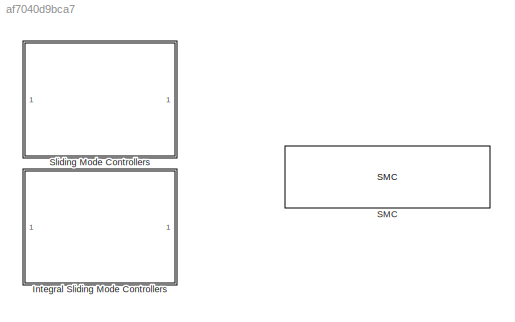
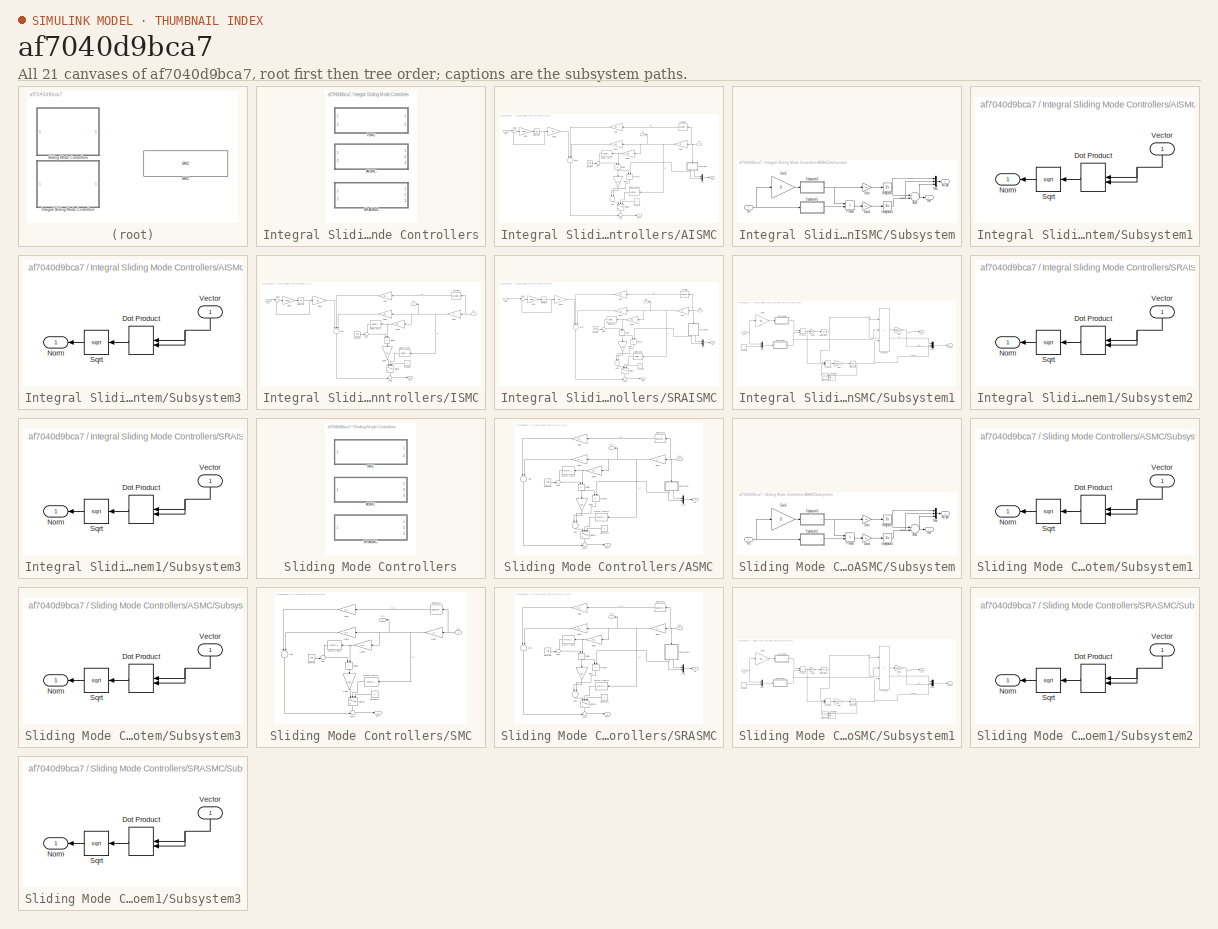
[diagram: thumbnail index - all 21 canvases of the model, root first then tree order]
MODEL slx_af7040d9bca7
KIND library
CONFIG AbsTol = auto
CONFIG EnableMultiTasking = off
CONFIG FixedStep = auto
CONFIG MaxStep = auto
CONFIG MinStep = auto
CONFIG RelTol = 1e-3
CONFIG SampleTimeConstraint = Unconstrained
CONFIG Solver = VariableStepAuto
CONFIG SolverName = VariableStepAuto
CONFIG StartTime = 0.0
CONFIG StopTime = 10.0
BLOCK [SubSystem] Integral Sliding Mode Controllers
  Ports = []
  RequestExecContextInheritance = off
  Variant = off
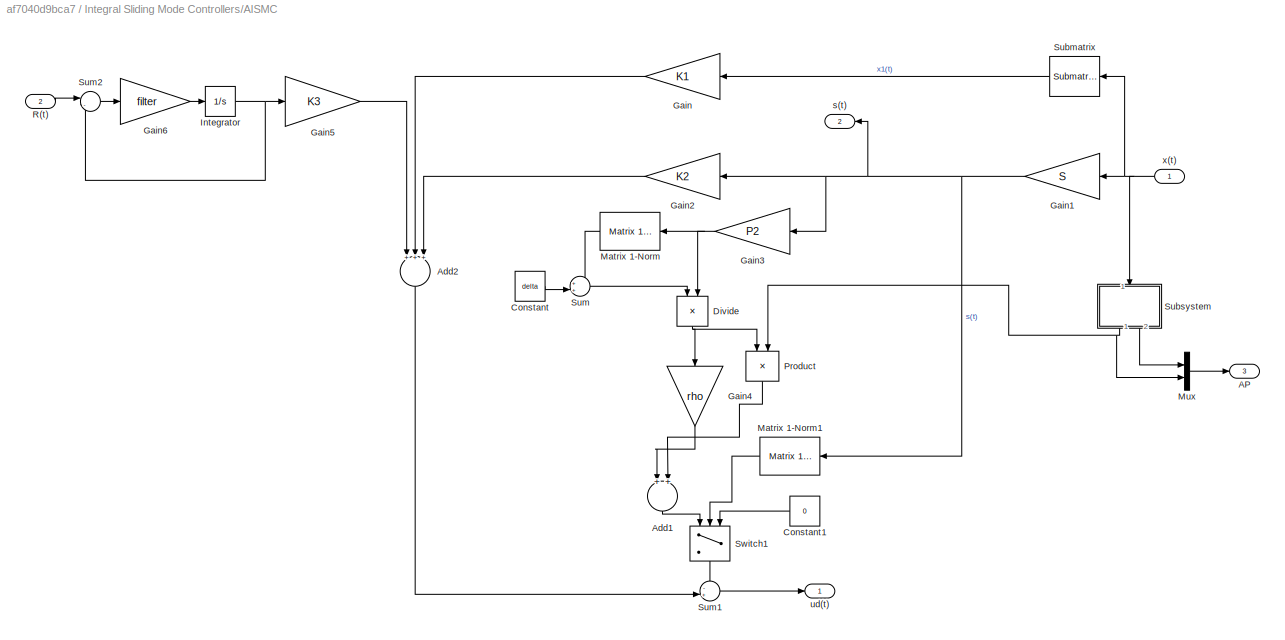
BLOCK [SubSystem] Integral Sliding Mode Controllers/AISMC
  Ports = [2, 3]
  RequestExecContextInheritance = off
  Variant = off
BLOCK [Outport] Integral Sliding Mode Controllers/AISMC/AP
  IconDisplay = Port number
  Port = 3
BLOCK [Sum] Integral Sliding Mode Controllers/AISMC/Add1
  InputSameDT = off
  OutDataTypeStr = Inherit: Inherit via internal rule
  Ports = [2, 1]
  SaturateOnIntegerOverflow = off
BLOCK [Sum] Integral Sliding Mode Controllers/AISMC/Add2
  InputSameDT = off
  Inputs = +++
  OutDataTypeStr = Inherit: Inherit via internal rule
  Ports = [3, 1]
  SaturateOnIntegerOverflow = off
BLOCK [Constant] Integral Sliding Mode Controllers/AISMC/Constant
  Value = delta
BLOCK [Constant] Integral Sliding Mode Controllers/AISMC/Constant1
  Value = 0
BLOCK [Product] Integral Sliding Mode Controllers/AISMC/Divide
  InputSameDT = off
  Inputs = /*
  OutDataTypeStr = Inherit: Inherit via internal rule
  Ports = [2, 1]
  RndMeth = Floor
  SaturateOnIntegerOverflow = off
BLOCK [Gain] Integral Sliding Mode Controllers/AISMC/Gain
  Gain = K1
  Multiplication = Matrix(K*u) (u vector)
  OutDataTypeStr = Inherit: Inherit via internal rule
  ParamDataTypeStr = Inherit: Inherit via internal rule
  SaturateOnIntegerOverflow = off
BLOCK [Gain] Integral Sliding Mode Controllers/AISMC/Gain1
  Gain = S
  Multiplication = Matrix(K*u) (u vector)
  OutDataTypeStr = Inherit: Inherit via internal rule
  ParamDataTypeStr = Inherit: Inherit via internal rule
  SaturateOnIntegerOverflow = off
BLOCK [Gain] Integral Sliding Mode Controllers/AISMC/Gain2
  Gain = K2
  Multiplication = Matrix(K*u) (u vector)
  OutDataTypeStr = Inherit: Inherit via internal rule
  ParamDataTypeStr = Inherit: Inherit via internal rule
  SaturateOnIntegerOverflow = off
BLOCK [Gain] Integral Sliding Mode Controllers/AISMC/Gain3
  Gain = P2
  Multiplication = Matrix(K*u) (u vector)
  OutDataTypeStr = Inherit: Inherit via internal rule
  ParamDataTypeStr = Inherit: Inherit via internal rule
  SaturateOnIntegerOverflow = off
BLOCK [Gain] Integral Sliding Mode Controllers/AISMC/Gain4
  Gain = rho
  OutDataTypeStr = Inherit: Inherit via internal rule
  ParamDataTypeStr = Inherit: Inherit via internal rule
  SaturateOnIntegerOverflow = off
BLOCK [Gain] Integral Sliding Mode Controllers/AISMC/Gain5
  Gain = K3
  Multiplication = Matrix(K*u) (u vector)
  OutDataTypeStr = Inherit: Inherit via internal rule
  ParamDataTypeStr = Inherit: Inherit via internal rule
  SaturateOnIntegerOverflow = off
BLOCK [Gain] Integral Sliding Mode Controllers/AISMC/Gain6
  Gain = filter
  Multiplication = Matrix(K*u) (u vector)
  OutDataTypeStr = Inherit: Inherit via internal rule
  ParamDataTypeStr = Inherit: Inherit via internal rule
  SaturateOnIntegerOverflow = off
BLOCK [Integrator] Integral Sliding Mode Controllers/AISMC/Integrator
  Ports = [1, 1]
BLOCK [Reference] Integral Sliding Mode Controllers/AISMC/Matrix 1-Norm  REF=dspmtrx3/Matrix 
1-Norm
  Ports = [1, 1]
  SourceBlock = dspmtrx3/Matrix \n1-Norm
  SourceProductBaseCode = DS
  SourceProductName = DSP System Toolbox
  SourceType = Matrix 1-Norm
BLOCK [Reference] Integral Sliding Mode Controllers/AISMC/Matrix 1-Norm1  REF=dspmtrx3/Matrix 
1-Norm
  Ports = [1, 1]
  SourceBlock = dspmtrx3/Matrix \n1-Norm
  SourceProductBaseCode = DS
  SourceProductName = DSP System Toolbox
  SourceType = Matrix 1-Norm
BLOCK [Mux] Integral Sliding Mode Controllers/AISMC/Mux
  DisplayOption = bar
  Inputs = 2
  Ports = [2, 1]
BLOCK [Product] Integral Sliding Mode Controllers/AISMC/Product
  InputSameDT = off
  OutDataTypeStr = Inherit: Inherit via internal rule
  Ports = [2, 1]
  RndMeth = Floor
  SaturateOnIntegerOverflow = off
BLOCK [Inport] Integral Sliding Mode Controllers/AISMC/R(t)
  IconDisplay = Port number
  Port = 2
BLOCK [Reference] Integral Sliding Mode Controllers/AISMC/Submatrix  REF=dspmtrx3/Submatrix
  Ports = [1, 1]
  SourceBlock = dspmtrx3/Submatrix
  SourceProductBaseCode = DS
  SourceProductName = DSP System Toolbox
  SourceType = Submatrix
BLOCK [SubSystem] Integral Sliding Mode Controllers/AISMC/Subsystem
  Ports = [1, 2]
  RequestExecContextInheritance = off
  Variant = off
BLOCK [Sum] Integral Sliding Mode Controllers/AISMC/Subsystem/Add
  InputSameDT = off
  OutDataTypeStr = Inherit: Inherit via internal rule
  Ports = [2, 1]
  SaturateOnIntegerOverflow = off
BLOCK [Gain] Integral Sliding Mode Controllers/AISMC/Subsystem/Gain
  Gain = pc
  OutDataTypeStr = Inherit: Inherit via internal rule
  ParamDataTypeStr = Inherit: Inherit via internal rule
  SaturateOnIntegerOverflow = off
BLOCK [Gain] Integral Sliding Mode Controllers/AISMC/Subsystem/Gain1
  Gain = pk
  OutDataTypeStr = Inherit: Inherit via internal rule
  ParamDataTypeStr = Inherit: Inherit via internal rule
  SaturateOnIntegerOverflow = off
BLOCK [Gain] Integral Sliding Mode Controllers/AISMC/Subsystem/Gain2
  Gain = S
  Multiplication = Matrix(K*u) (u vector)
  OutDataTypeStr = Inherit: Inherit via internal rule
  ParamDataTypeStr = Inherit: Inherit via internal rule
  SaturateOnIntegerOverflow = off
BLOCK [Integrator] Integral Sliding Mode Controllers/AISMC/Subsystem/Integrator
  InitialCondition = c0
  Ports = [1, 1]
BLOCK [Integrator] Integral Sliding Mode Controllers/AISMC/Subsystem/Integrator1
  InitialCondition = k0
  Ports = [1, 1]
BLOCK [Mux] Integral Sliding Mode Controllers/AISMC/Subsystem/Mux
  DisplayOption = bar
  Inputs = 3
  Ports = [3, 1]
BLOCK [Product] Integral Sliding Mode Controllers/AISMC/Subsystem/Product
  InputSameDT = off
  OutDataTypeStr = Inherit: Inherit via internal rule
  Ports = [2, 1]
  RndMeth = Floor
  SaturateOnIntegerOverflow = off
BLOCK [SubSystem] Integral Sliding Mode Controllers/AISMC/Subsystem/Subsystem1
  Ports = [1, 1]
  RequestExecContextInheritance = off
  Variant = off
BLOCK [DotProduct] Integral Sliding Mode Controllers/AISMC/Subsystem/Subsystem1/Dot Product
  OutDataTypeStr = Inherit: Inherit via internal rule
BLOCK [Outport] Integral Sliding Mode Controllers/AISMC/Subsystem/Subsystem1/Norm
  IconDisplay = Port number
BLOCK [Sqrt] Integral Sliding Mode Controllers/AISMC/Subsystem/Subsystem1/Sqrt
BLOCK [Inport] Integral Sliding Mode Controllers/AISMC/Subsystem/Subsystem1/Vector
  IconDisplay = Port number
BLOCK [SubSystem] Integral Sliding Mode Controllers/AISMC/Subsystem/Subsystem3
  Ports = [1, 1]
  RequestExecContextInheritance = off
  Variant = off
BLOCK [DotProduct] Integral Sliding Mode Controllers/AISMC/Subsystem/Subsystem3/Dot Product
  OutDataTypeStr = Inherit: Inherit via internal rule
BLOCK [Outport] Integral Sliding Mode Controllers/AISMC/Subsystem/Subsystem3/Norm
  IconDisplay = Port number
BLOCK [Sqrt] Integral Sliding Mode Controllers/AISMC/Subsystem/Subsystem3/Sqrt
BLOCK [Inport] Integral Sliding Mode Controllers/AISMC/Subsystem/Subsystem3/Vector
  IconDisplay = Port number
BLOCK [Outport] Integral Sliding Mode Controllers/AISMC/Subsystem/est-par
  IconDisplay = Port number
  Port = 2
BLOCK [Outport] Integral Sliding Mode Controllers/AISMC/Subsystem/rho
  IconDisplay = Port number
BLOCK [Inport] Integral Sliding Mode Controllers/AISMC/Subsystem/x(t)
  IconDisplay = Port number
BLOCK [Sum] Integral Sliding Mode Controllers/AISMC/Sum
  IconShape = round
  InputSameDT = off
  Inputs = ++|
  OutDataTypeStr = Inherit: Inherit via internal rule
  Ports = [2, 1]
  SaturateOnIntegerOverflow = off
BLOCK [Sum] Integral Sliding Mode Controllers/AISMC/Sum1
  IconShape = round
  InputSameDT = off
  Inputs = -+|
  OutDataTypeStr = Inherit: Inherit via internal rule
  Ports = [2, 1]
  SaturateOnIntegerOverflow = off
BLOCK [Sum] Integral Sliding Mode Controllers/AISMC/Sum2
  IconShape = round
  InputSameDT = off
  Inputs = |-+
  OutDataTypeStr = Inherit: Inherit via internal rule
  Ports = [2, 1]
  SaturateOnIntegerOverflow = off
BLOCK [Switch] Integral Sliding Mode Controllers/AISMC/Switch1
  Criteria = u2 > Threshold
  InputSameDT = off
  SaturateOnIntegerOverflow = off
  Threshold = eps
  ZeroCross = off
BLOCK [Outport] Integral Sliding Mode Controllers/AISMC/s(t)
  IconDisplay = Port number
  Port = 2
BLOCK [Outport] Integral Sliding Mode Controllers/AISMC/ud(t)
  IconDisplay = Port number
BLOCK [Inport] Integral Sliding Mode Controllers/AISMC/x(t)
  IconDisplay = Port number
BLOCK [SubSystem] Integral Sliding Mode Controllers/ISMC
  Ports = [2, 2]
  RequestExecContextInheritance = off
  Variant = off
BLOCK [Sum] Integral Sliding Mode Controllers/ISMC/Add
  InputSameDT = off
  Inputs = +++
  OutDataTypeStr = Inherit: Inherit via internal rule
  Ports = [3, 1]
  SaturateOnIntegerOverflow = off
BLOCK [Constant] Integral Sliding Mode Controllers/ISMC/Constant
  Value = delta
BLOCK [Constant] Integral Sliding Mode Controllers/ISMC/Constant1
  Value = 0
BLOCK [Product] Integral Sliding Mode Controllers/ISMC/Divide
  InputSameDT = off
  Inputs = /*
  OutDataTypeStr = Inherit: Inherit via internal rule
  Ports = [2, 1]
  RndMeth = Floor
  SaturateOnIntegerOverflow = off
BLOCK [Gain] Integral Sliding Mode Controllers/ISMC/Gain
  Gain = K1
  Multiplication = Matrix(K*u) (u vector)
  OutDataTypeStr = Inherit: Inherit via internal rule
  ParamDataTypeStr = Inherit: Inherit via internal rule
  SaturateOnIntegerOverflow = off
BLOCK [Gain] Integral Sliding Mode Controllers/ISMC/Gain1
  Gain = S
  Multiplication = Matrix(K*u) (u vector)
  OutDataTypeStr = Inherit: Inherit via internal rule
  ParamDataTypeStr = Inherit: Inherit via internal rule
  SaturateOnIntegerOverflow = off
BLOCK [Gain] Integral Sliding Mode Controllers/ISMC/Gain2
  Gain = K2
  Multiplication = Matrix(K*u) (u vector)
  OutDataTypeStr = Inherit: Inherit via internal rule
  ParamDataTypeStr = Inherit: Inherit via internal rule
  SaturateOnIntegerOverflow = off
BLOCK [Gain] Integral Sliding Mode Controllers/ISMC/Gain3
  Gain = P2
  Multiplication = Matrix(K*u) (u vector)
  OutDataTypeStr = Inherit: Inherit via internal rule
  ParamDataTypeStr = Inherit: Inherit via internal rule
  SaturateOnIntegerOverflow = off
BLOCK [Gain] Integral Sliding Mode Controllers/ISMC/Gain4
  Gain = rho
  OutDataTypeStr = Inherit: Inherit via internal rule
  ParamDataTypeStr = Inherit: Inherit via internal rule
  SaturateOnIntegerOverflow = off
BLOCK [Gain] Integral Sliding Mode Controllers/ISMC/Gain5
  Gain = K3
  Multiplication = Matrix(K*u) (u vector)
  OutDataTypeStr = Inherit: Inherit via internal rule
  ParamDataTypeStr = Inherit: Inherit via internal rule
  SaturateOnIntegerOverflow = off
BLOCK [Gain] Integral Sliding Mode Controllers/ISMC/Gain6
  Gain = filter
  Multiplication = Matrix(K*u) (u vector)
  OutDataTypeStr = Inherit: Inherit via internal rule
  ParamDataTypeStr = Inherit: Inherit via internal rule
  SaturateOnIntegerOverflow = off
BLOCK [Integrator] Integral Sliding Mode Controllers/ISMC/Integrator
  Ports = [1, 1]
BLOCK [Reference] Integral Sliding Mode Controllers/ISMC/Matrix 1-Norm  REF=dspmtrx3/Matrix 
1-Norm
  Ports = [1, 1]
  SourceBlock = dspmtrx3/Matrix \n1-Norm
  SourceProductBaseCode = DS
  SourceProductName = DSP System Toolbox
  SourceType = Matrix 1-Norm
BLOCK [Reference] Integral Sliding Mode Controllers/ISMC/Matrix 1-Norm1  REF=dspmtrx3/Matrix 
1-Norm
  Ports = [1, 1]
  SourceBlock = dspmtrx3/Matrix \n1-Norm
  SourceProductBaseCode = DS
  SourceProductName = DSP System Toolbox
  SourceType = Matrix 1-Norm
BLOCK [Inport] Integral Sliding Mode Controllers/ISMC/R(t)
  IconDisplay = Port number
  Port = 2
BLOCK [Reference] Integral Sliding Mode Controllers/ISMC/Submatrix  REF=dspmtrx3/Submatrix
  Ports = [1, 1]
  SourceBlock = dspmtrx3/Submatrix
  SourceProductBaseCode = DS
  SourceProductName = DSP System Toolbox
  SourceType = Submatrix
BLOCK [Sum] Integral Sliding Mode Controllers/ISMC/Sum
  IconShape = round
  InputSameDT = off
  Inputs = ++|
  OutDataTypeStr = Inherit: Inherit via internal rule
  Ports = [2, 1]
  SaturateOnIntegerOverflow = off
BLOCK [Sum] Integral Sliding Mode Controllers/ISMC/Sum1
  IconShape = round
  InputSameDT = off
  Inputs = -+|
  OutDataTypeStr = Inherit: Inherit via internal rule
  Ports = [2, 1]
  SaturateOnIntegerOverflow = off
BLOCK [Sum] Integral Sliding Mode Controllers/ISMC/Sum2
  IconShape = round
  InputSameDT = off
  Inputs = |-+
  OutDataTypeStr = Inherit: Inherit via internal rule
  Ports = [2, 1]
  SaturateOnIntegerOverflow = off
BLOCK [Switch] Integral Sliding Mode Controllers/ISMC/Switch1
  Criteria = u2 > Threshold
  InputSameDT = off
  SaturateOnIntegerOverflow = off
  Threshold = eps
  ZeroCross = off
BLOCK [Outport] Integral Sliding Mode Controllers/ISMC/s(t)
  IconDisplay = Port number
  Port = 2
BLOCK [Outport] Integral Sliding Mode Controllers/ISMC/ud(t)
  IconDisplay = Port number
BLOCK [Inport] Integral Sliding Mode Controllers/ISMC/x(t)
  IconDisplay = Port number
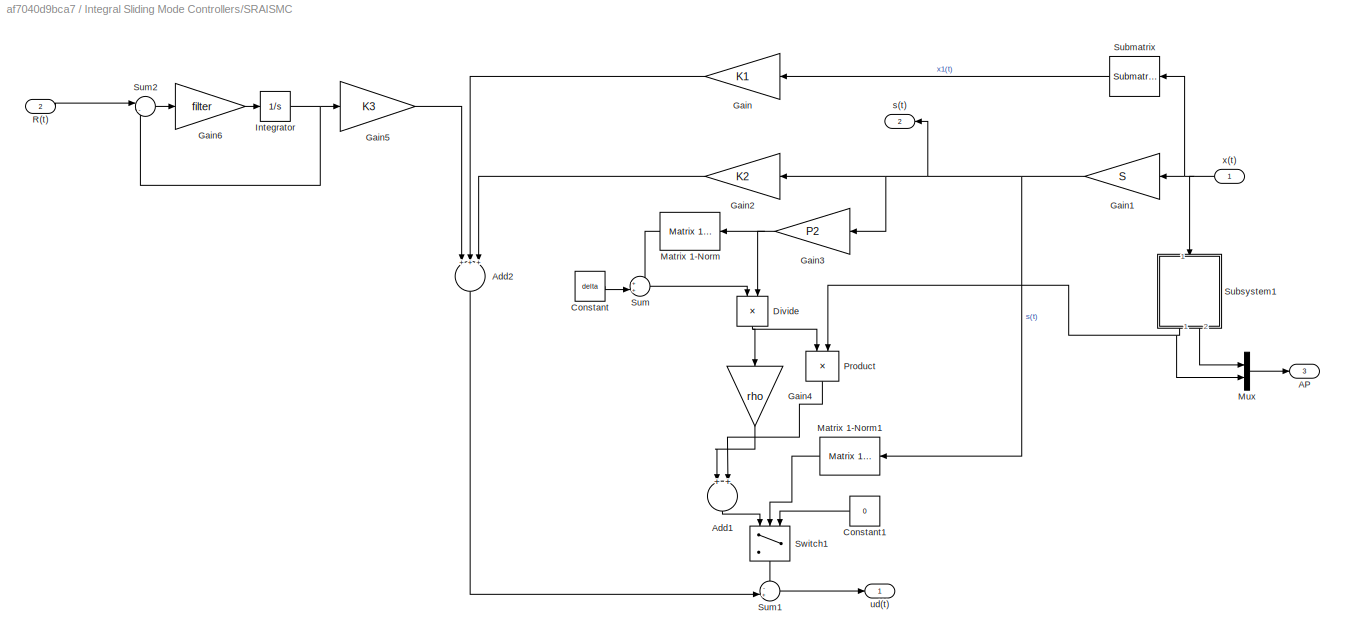
BLOCK [SubSystem] Integral Sliding Mode Controllers/SRAISMC
  Ports = [2, 3]
  RequestExecContextInheritance = off
  Variant = off
BLOCK [Outport] Integral Sliding Mode Controllers/SRAISMC/AP
  IconDisplay = Port number
  Port = 3
BLOCK [Sum] Integral Sliding Mode Controllers/SRAISMC/Add1
  InputSameDT = off
  OutDataTypeStr = Inherit: Inherit via internal rule
  Ports = [2, 1]
  SaturateOnIntegerOverflow = off
BLOCK [Sum] Integral Sliding Mode Controllers/SRAISMC/Add2
  InputSameDT = off
  Inputs = +++
  OutDataTypeStr = Inherit: Inherit via internal rule
  Ports = [3, 1]
  SaturateOnIntegerOverflow = off
BLOCK [Constant] Integral Sliding Mode Controllers/SRAISMC/Constant
  Value = delta
BLOCK [Constant] Integral Sliding Mode Controllers/SRAISMC/Constant1
  Value = 0
BLOCK [Product] Integral Sliding Mode Controllers/SRAISMC/Divide
  InputSameDT = off
  Inputs = /*
  OutDataTypeStr = Inherit: Inherit via internal rule
  Ports = [2, 1]
  RndMeth = Floor
  SaturateOnIntegerOverflow = off
BLOCK [Gain] Integral Sliding Mode Controllers/SRAISMC/Gain
  Gain = K1
  Multiplication = Matrix(K*u) (u vector)
  OutDataTypeStr = Inherit: Inherit via internal rule
  ParamDataTypeStr = Inherit: Inherit via internal rule
  SaturateOnIntegerOverflow = off
BLOCK [Gain] Integral Sliding Mode Controllers/SRAISMC/Gain1
  Gain = S
  Multiplication = Matrix(K*u) (u vector)
  OutDataTypeStr = Inherit: Inherit via internal rule
  ParamDataTypeStr = Inherit: Inherit via internal rule
  SaturateOnIntegerOverflow = off
BLOCK [Gain] Integral Sliding Mode Controllers/SRAISMC/Gain2
  Gain = K2
  Multiplication = Matrix(K*u) (u vector)
  OutDataTypeStr = Inherit: Inherit via internal rule
  ParamDataTypeStr = Inherit: Inherit via internal rule
  SaturateOnIntegerOverflow = off
BLOCK [Gain] Integral Sliding Mode Controllers/SRAISMC/Gain3
  Gain = P2
  Multiplication = Matrix(K*u) (u vector)
  OutDataTypeStr = Inherit: Inherit via internal rule
  ParamDataTypeStr = Inherit: Inherit via internal rule
  SaturateOnIntegerOverflow = off
BLOCK [Gain] Integral Sliding Mode Controllers/SRAISMC/Gain4
  Gain = rho
  OutDataTypeStr = Inherit: Inherit via internal rule
  ParamDataTypeStr = Inherit: Inherit via internal rule
  SaturateOnIntegerOverflow = off
BLOCK [Gain] Integral Sliding Mode Controllers/SRAISMC/Gain5
  Gain = K3
  Multiplication = Matrix(K*u) (u vector)
  OutDataTypeStr = Inherit: Inherit via internal rule
  ParamDataTypeStr = Inherit: Inherit via internal rule
  SaturateOnIntegerOverflow = off
BLOCK [Gain] Integral Sliding Mode Controllers/SRAISMC/Gain6
  Gain = filter
  Multiplication = Matrix(K*u) (u vector)
  OutDataTypeStr = Inherit: Inherit via internal rule
  ParamDataTypeStr = Inherit: Inherit via internal rule
  SaturateOnIntegerOverflow = off
BLOCK [Integrator] Integral Sliding Mode Controllers/SRAISMC/Integrator
  Ports = [1, 1]
BLOCK [Reference] Integral Sliding Mode Controllers/SRAISMC/Matrix 1-Norm  REF=dspmtrx3/Matrix 
1-Norm
  Ports = [1, 1]
  SourceBlock = dspmtrx3/Matrix \n1-Norm
  SourceProductBaseCode = DS
  SourceProductName = DSP System Toolbox
  SourceType = Matrix 1-Norm
BLOCK [Reference] Integral Sliding Mode Controllers/SRAISMC/Matrix 1-Norm1  REF=dspmtrx3/Matrix 
1-Norm
  Ports = [1, 1]
  SourceBlock = dspmtrx3/Matrix \n1-Norm
  SourceProductBaseCode = DS
  SourceProductName = DSP System Toolbox
  SourceType = Matrix 1-Norm
BLOCK [Mux] Integral Sliding Mode Controllers/SRAISMC/Mux
  DisplayOption = bar
  Inputs = 2
  Ports = [2, 1]
BLOCK [Product] Integral Sliding Mode Controllers/SRAISMC/Product
  InputSameDT = off
  OutDataTypeStr = Inherit: Inherit via internal rule
  Ports = [2, 1]
  RndMeth = Floor
  SaturateOnIntegerOverflow = off
BLOCK [Inport] Integral Sliding Mode Controllers/SRAISMC/R(t)
  IconDisplay = Port number
  Port = 2
BLOCK [Reference] Integral Sliding Mode Controllers/SRAISMC/Submatrix  REF=dspmtrx3/Submatrix
  Ports = [1, 1]
  SourceBlock = dspmtrx3/Submatrix
  SourceProductBaseCode = DS
  SourceProductName = DSP System Toolbox
  SourceType = Submatrix
BLOCK [SubSystem] Integral Sliding Mode Controllers/SRAISMC/Subsystem1
  Ports = [1, 2]
  RequestExecContextInheritance = off
  Variant = off
BLOCK [Constant] Integral Sliding Mode Controllers/SRAISMC/Subsystem1/Constant
BLOCK [Constant] Integral Sliding Mode Controllers/SRAISMC/Subsystem1/Constant3
  Value = 5
BLOCK [Gain] Integral Sliding Mode Controllers/SRAISMC/Subsystem1/Gain
  Gain = beta
  OutDataTypeStr = Inherit: Inherit via internal rule
  ParamDataTypeStr = Inherit: Inherit via internal rule
  SaturateOnIntegerOverflow = off
BLOCK [Gain] Integral Sliding Mode Controllers/SRAISMC/Subsystem1/Gain1
  Gain = pk
  OutDataTypeStr = Inherit: Inherit via internal rule
  ParamDataTypeStr = Inherit: Inherit via internal rule
  SaturateOnIntegerOverflow = off
BLOCK [Gain] Integral Sliding Mode Controllers/SRAISMC/Subsystem1/Gain2
  Gain = Slat
  Multiplication = Matrix(K*u) (u vector)
  OutDataTypeStr = Inherit: Inherit via internal rule
  ParamDataTypeStr = Inherit: Inherit via internal rule
  SaturateOnIntegerOverflow = off
BLOCK [Gain] Integral Sliding Mode Controllers/SRAISMC/Subsystem1/Gain3
  Gain = beta
  OutDataTypeStr = Inherit: Inherit via internal rule
  ParamDataTypeStr = Inherit: Inherit via internal rule
  SaturateOnIntegerOverflow = off
BLOCK [Integrator] Integral Sliding Mode Controllers/SRAISMC/Subsystem1/Integrator
  InitialCondition = gamma0
  Ports = [1, 1]
BLOCK [Integrator] Integral Sliding Mode Controllers/SRAISMC/Subsystem1/Integrator1
  InitialCondition = k02
  Ports = [1, 1]
BLOCK [Math] Integral Sliding Mode Controllers/SRAISMC/Subsystem1/Math Function
  Operator = pow
  Ports = [2, 1]
BLOCK [Mux] Integral Sliding Mode Controllers/SRAISMC/Subsystem1/Mux
  DisplayOption = bar
  Inputs = 2
  Ports = [2, 1]
BLOCK [Mux] Integral Sliding Mode Controllers/SRAISMC/Subsystem1/Mux1
  DisplayOption = bar
  Inputs = 3
  Ports = [3, 1]
BLOCK [Product] Integral Sliding Mode Controllers/SRAISMC/Subsystem1/Product
  InputSameDT = off
  OutDataTypeStr = Inherit: Inherit via internal rule
  Ports = [2, 1]
  RndMeth = Floor
  SaturateOnIntegerOverflow = off
BLOCK [Product] Integral Sliding Mode Controllers/SRAISMC/Subsystem1/Product1
  InputSameDT = off
  Inputs = 3
  OutDataTypeStr = Inherit: Inherit via internal rule
  Ports = [3, 1]
  RndMeth = Floor
  SaturateOnIntegerOverflow = off
BLOCK [Product] Integral Sliding Mode Controllers/SRAISMC/Subsystem1/Product2
  InputSameDT = off
  Inputs = 3
  OutDataTypeStr = Inherit: Inherit via internal rule
  Ports = [3, 1]
  RndMeth = Floor
  SaturateOnIntegerOverflow = off
BLOCK [SubSystem] Integral Sliding Mode Controllers/SRAISMC/Subsystem1/Subsystem2
  Ports = [1, 1]
  RequestExecContextInheritance = off
  Variant = off
BLOCK [DotProduct] Integral Sliding Mode Controllers/SRAISMC/Subsystem1/Subsystem2/Dot Product
  OutDataTypeStr = Inherit: Inherit via internal rule
BLOCK [Outport] Integral Sliding Mode Controllers/SRAISMC/Subsystem1/Subsystem2/Norm
  IconDisplay = Port number
BLOCK [Sqrt] Integral Sliding Mode Controllers/SRAISMC/Subsystem1/Subsystem2/Sqrt
BLOCK [Inport] Integral Sliding Mode Controllers/SRAISMC/Subsystem1/Subsystem2/Vector
  IconDisplay = Port number
BLOCK [SubSystem] Integral Sliding Mode Controllers/SRAISMC/Subsystem1/Subsystem3
  Ports = [1, 1]
  RequestExecContextInheritance = off
  Variant = off
BLOCK [DotProduct] Integral Sliding Mode Controllers/SRAISMC/Subsystem1/Subsystem3/Dot Product
  OutDataTypeStr = Inherit: Inherit via internal rule
BLOCK [Outport] Integral Sliding Mode Controllers/SRAISMC/Subsystem1/Subsystem3/Norm
  IconDisplay = Port number
BLOCK [Sqrt] Integral Sliding Mode Controllers/SRAISMC/Subsystem1/Subsystem3/Sqrt
BLOCK [Inport] Integral Sliding Mode Controllers/SRAISMC/Subsystem1/Subsystem3/Vector
  IconDisplay = Port number
BLOCK [Outport] Integral Sliding Mode Controllers/SRAISMC/Subsystem1/est-par
  IconDisplay = Port number
  Port = 2
BLOCK [Outport] Integral Sliding Mode Controllers/SRAISMC/Subsystem1/us(t)
  IconDisplay = Port number
BLOCK [Inport] Integral Sliding Mode Controllers/SRAISMC/Subsystem1/x(t)
  IconDisplay = Port number
BLOCK [Sum] Integral Sliding Mode Controllers/SRAISMC/Sum
  IconShape = round
  InputSameDT = off
  Inputs = ++|
  OutDataTypeStr = Inherit: Inherit via internal rule
  Ports = [2, 1]
  SaturateOnIntegerOverflow = off
BLOCK [Sum] Integral Sliding Mode Controllers/SRAISMC/Sum1
  IconShape = round
  InputSameDT = off
  Inputs = -+|
  OutDataTypeStr = Inherit: Inherit via internal rule
  Ports = [2, 1]
  SaturateOnIntegerOverflow = off
BLOCK [Sum] Integral Sliding Mode Controllers/SRAISMC/Sum2
  IconShape = round
  InputSameDT = off
  Inputs = |-+
  OutDataTypeStr = Inherit: Inherit via internal rule
  Ports = [2, 1]
  SaturateOnIntegerOverflow = off
BLOCK [Switch] Integral Sliding Mode Controllers/SRAISMC/Switch1
  Criteria = u2 > Threshold
  InputSameDT = off
  SaturateOnIntegerOverflow = off
  Threshold = eps
  ZeroCross = off
BLOCK [Outport] Integral Sliding Mode Controllers/SRAISMC/s(t)
  IconDisplay = Port number
  Port = 2
BLOCK [Outport] Integral Sliding Mode Controllers/SRAISMC/ud(t)
  IconDisplay = Port number
BLOCK [Inport] Integral Sliding Mode Controllers/SRAISMC/x(t)
  IconDisplay = Port number
BLOCK [Reference] SMC  REF=SMC2/SMC
  Ports = [2, 3]
  SourceBlock = SMC2/SMC
BLOCK [SubSystem] Sliding Mode Controllers
  Ports = []
  RequestExecContextInheritance = off
  Variant = off
BLOCK [SubSystem] Sliding Mode Controllers/ASMC
  Ports = [1, 3]
  RequestExecContextInheritance = off
  Variant = off
BLOCK [Outport] Sliding Mode Controllers/ASMC/AP
  IconDisplay = Port number
  Port = 3
BLOCK [Sum] Sliding Mode Controllers/ASMC/Add
  InputSameDT = off
  OutDataTypeStr = Inherit: Inherit via internal rule
  Ports = [2, 1]
  SaturateOnIntegerOverflow = off
BLOCK [Sum] Sliding Mode Controllers/ASMC/Add1
  InputSameDT = off
  OutDataTypeStr = Inherit: Inherit via internal rule
  Ports = [2, 1]
  SaturateOnIntegerOverflow = off
BLOCK [Constant] Sliding Mode Controllers/ASMC/Constant
  Value = delta
BLOCK [Constant] Sliding Mode Controllers/ASMC/Constant1
  Value = 0
BLOCK [Product] Sliding Mode Controllers/ASMC/Divide
  InputSameDT = off
  Inputs = /*
  OutDataTypeStr = Inherit: Inherit via internal rule
  Ports = [2, 1]
  RndMeth = Floor
  SaturateOnIntegerOverflow = off
BLOCK [Gain] Sliding Mode Controllers/ASMC/Gain
  Gain = K1
  Multiplication = Matrix(K*u) (u vector)
  OutDataTypeStr = Inherit: Inherit via internal rule
  ParamDataTypeStr = Inherit: Inherit via internal rule
  SaturateOnIntegerOverflow = off
BLOCK [Gain] Sliding Mode Controllers/ASMC/Gain1
  Gain = S
  Multiplication = Matrix(K*u) (u vector)
  OutDataTypeStr = Inherit: Inherit via internal rule
  ParamDataTypeStr = Inherit: Inherit via internal rule
  SaturateOnIntegerOverflow = off
BLOCK [Gain] Sliding Mode Controllers/ASMC/Gain2
  Gain = K2
  Multiplication = Matrix(K*u) (u vector)
  OutDataTypeStr = Inherit: Inherit via internal rule
  ParamDataTypeStr = Inherit: Inherit via internal rule
  SaturateOnIntegerOverflow = off
BLOCK [Gain] Sliding Mode Controllers/ASMC/Gain3
  Gain = P2
  Multiplication = Matrix(K*u) (u vector)
  OutDataTypeStr = Inherit: Inherit via internal rule
  ParamDataTypeStr = Inherit: Inherit via internal rule
  SaturateOnIntegerOverflow = off
BLOCK [Gain] Sliding Mode Controllers/ASMC/Gain4
  Gain = rho
  OutDataTypeStr = Inherit: Inherit via internal rule
  ParamDataTypeStr = Inherit: Inherit via internal rule
  SaturateOnIntegerOverflow = off
BLOCK [Reference] Sliding Mode Controllers/ASMC/Matrix 1-Norm  REF=dspmtrx3/Matrix 
1-Norm
  Ports = [1, 1]
  SourceBlock = dspmtrx3/Matrix \n1-Norm
  SourceProductBaseCode = DS
  SourceProductName = DSP System Toolbox
  SourceType = Matrix 1-Norm
BLOCK [Reference] Sliding Mode Controllers/ASMC/Matrix 1-Norm1  REF=dspmtrx3/Matrix 
1-Norm
  Ports = [1, 1]
  SourceBlock = dspmtrx3/Matrix \n1-Norm
  SourceProductBaseCode = DS
  SourceProductName = DSP System Toolbox
  SourceType = Matrix 1-Norm
BLOCK [Mux] Sliding Mode Controllers/ASMC/Mux
  DisplayOption = bar
  Inputs = 2
  Ports = [2, 1]
BLOCK [Product] Sliding Mode Controllers/ASMC/Product
  InputSameDT = off
  OutDataTypeStr = Inherit: Inherit via internal rule
  Ports = [2, 1]
  RndMeth = Floor
  SaturateOnIntegerOverflow = off
BLOCK [Reference] Sliding Mode Controllers/ASMC/Submatrix  REF=dspmtrx3/Submatrix
  Ports = [1, 1]
  SourceBlock = dspmtrx3/Submatrix
  SourceProductBaseCode = DS
  SourceProductName = DSP System Toolbox
  SourceType = Submatrix
BLOCK [SubSystem] Sliding Mode Controllers/ASMC/Subsystem
  Ports = [1, 2]
  RequestExecContextInheritance = off
  Variant = off
BLOCK [Sum] Sliding Mode Controllers/ASMC/Subsystem/Add
  InputSameDT = off
  OutDataTypeStr = Inherit: Inherit via internal rule
  Ports = [2, 1]
  SaturateOnIntegerOverflow = off
BLOCK [Gain] Sliding Mode Controllers/ASMC/Subsystem/Gain
  Gain = pc
  OutDataTypeStr = Inherit: Inherit via internal rule
  ParamDataTypeStr = Inherit: Inherit via internal rule
  SaturateOnIntegerOverflow = off
BLOCK [Gain] Sliding Mode Controllers/ASMC/Subsystem/Gain1
  Gain = pk
  OutDataTypeStr = Inherit: Inherit via internal rule
  ParamDataTypeStr = Inherit: Inherit via internal rule
  SaturateOnIntegerOverflow = off
BLOCK [Gain] Sliding Mode Controllers/ASMC/Subsystem/Gain2
  Gain = S
  Multiplication = Matrix(K*u) (u vector)
  OutDataTypeStr = Inherit: Inherit via internal rule
  ParamDataTypeStr = Inherit: Inherit via internal rule
  SaturateOnIntegerOverflow = off
BLOCK [Integrator] Sliding Mode Controllers/ASMC/Subsystem/Integrator
  InitialCondition = c0
  Ports = [1, 1]
BLOCK [Integrator] Sliding Mode Controllers/ASMC/Subsystem/Integrator1
  InitialCondition = k0
  Ports = [1, 1]
BLOCK [Mux] Sliding Mode Controllers/ASMC/Subsystem/Mux
  DisplayOption = bar
  Inputs = 3
  Ports = [3, 1]
BLOCK [Product] Sliding Mode Controllers/ASMC/Subsystem/Product
  InputSameDT = off
  OutDataTypeStr = Inherit: Inherit via internal rule
  Ports = [2, 1]
  RndMeth = Floor
  SaturateOnIntegerOverflow = off
BLOCK [SubSystem] Sliding Mode Controllers/ASMC/Subsystem/Subsystem1
  Ports = [1, 1]
  RequestExecContextInheritance = off
  Variant = off
BLOCK [DotProduct] Sliding Mode Controllers/ASMC/Subsystem/Subsystem1/Dot Product
  OutDataTypeStr = Inherit: Inherit via internal rule
BLOCK [Outport] Sliding Mode Controllers/ASMC/Subsystem/Subsystem1/Norm
  IconDisplay = Port number
BLOCK [Sqrt] Sliding Mode Controllers/ASMC/Subsystem/Subsystem1/Sqrt
BLOCK [Inport] Sliding Mode Controllers/ASMC/Subsystem/Subsystem1/Vector
  IconDisplay = Port number
BLOCK [SubSystem] Sliding Mode Controllers/ASMC/Subsystem/Subsystem3
  Ports = [1, 1]
  RequestExecContextInheritance = off
  Variant = off
BLOCK [DotProduct] Sliding Mode Controllers/ASMC/Subsystem/Subsystem3/Dot Product
  OutDataTypeStr = Inherit: Inherit via internal rule
BLOCK [Outport] Sliding Mode Controllers/ASMC/Subsystem/Subsystem3/Norm
  IconDisplay = Port number
BLOCK [Sqrt] Sliding Mode Controllers/ASMC/Subsystem/Subsystem3/Sqrt
BLOCK [Inport] Sliding Mode Controllers/ASMC/Subsystem/Subsystem3/Vector
  IconDisplay = Port number
BLOCK [Outport] Sliding Mode Controllers/ASMC/Subsystem/est-par
  IconDisplay = Port number
  Port = 2
BLOCK [Outport] Sliding Mode Controllers/ASMC/Subsystem/rho
  IconDisplay = Port number
BLOCK [Inport] Sliding Mode Controllers/ASMC/Subsystem/x(t)
  IconDisplay = Port number
BLOCK [Sum] Sliding Mode Controllers/ASMC/Sum
  IconShape = round
  InputSameDT = off
  Inputs = ++|
  OutDataTypeStr = Inherit: Inherit via internal rule
  Ports = [2, 1]
  SaturateOnIntegerOverflow = off
BLOCK [Sum] Sliding Mode Controllers/ASMC/Sum1
  IconShape = round
  InputSameDT = off
  Inputs = -+|
  OutDataTypeStr = Inherit: Inherit via internal rule
  Ports = [2, 1]
  SaturateOnIntegerOverflow = off
BLOCK [Switch] Sliding Mode Controllers/ASMC/Switch1
  Criteria = u2 > Threshold
  InputSameDT = off
  SaturateOnIntegerOverflow = off
  Threshold = eps
  ZeroCross = off
BLOCK [Outport] Sliding Mode Controllers/ASMC/s(t)
  IconDisplay = Port number
  Port = 2
BLOCK [Outport] Sliding Mode Controllers/ASMC/ud(t)
  IconDisplay = Port number
BLOCK [Inport] Sliding Mode Controllers/ASMC/x(t)
  IconDisplay = Port number
BLOCK [SubSystem] Sliding Mode Controllers/SMC
  Ports = [1, 2]
  RequestExecContextInheritance = off
  Variant = off
BLOCK [Sum] Sliding Mode Controllers/SMC/Add
  InputSameDT = off
  OutDataTypeStr = Inherit: Inherit via internal rule
  Ports = [2, 1]
  SaturateOnIntegerOverflow = off
BLOCK [Constant] Sliding Mode Controllers/SMC/Constant
  Value = delta
BLOCK [Constant] Sliding Mode Controllers/SMC/Constant1
  Value = 0
BLOCK [Product] Sliding Mode Controllers/SMC/Divide
  InputSameDT = off
  Inputs = /*
  OutDataTypeStr = Inherit: Inherit via internal rule
  Ports = [2, 1]
  RndMeth = Floor
  SaturateOnIntegerOverflow = off
BLOCK [Gain] Sliding Mode Controllers/SMC/Gain
  Gain = K1
  Multiplication = Matrix(K*u) (u vector)
  OutDataTypeStr = Inherit: Inherit via internal rule
  ParamDataTypeStr = Inherit: Inherit via internal rule
  SaturateOnIntegerOverflow = off
BLOCK [Gain] Sliding Mode Controllers/SMC/Gain1
  Gain = S
  Multiplication = Matrix(K*u) (u vector)
  OutDataTypeStr = Inherit: Inherit via internal rule
  ParamDataTypeStr = Inherit: Inherit via internal rule
  SaturateOnIntegerOverflow = off
BLOCK [Gain] Sliding Mode Controllers/SMC/Gain2
  Gain = K2
  Multiplication = Matrix(K*u) (u vector)
  OutDataTypeStr = Inherit: Inherit via internal rule
  ParamDataTypeStr = Inherit: Inherit via internal rule
  SaturateOnIntegerOverflow = off
BLOCK [Gain] Sliding Mode Controllers/SMC/Gain3
  Gain = P2
  Multiplication = Matrix(K*u) (u vector)
  OutDataTypeStr = Inherit: Inherit via internal rule
  ParamDataTypeStr = Inherit: Inherit via internal rule
  SaturateOnIntegerOverflow = off
BLOCK [Gain] Sliding Mode Controllers/SMC/Gain4
  Gain = rho
  OutDataTypeStr = Inherit: Inherit via internal rule
  ParamDataTypeStr = Inherit: Inherit via internal rule
  SaturateOnIntegerOverflow = off
BLOCK [Reference] Sliding Mode Controllers/SMC/Matrix 1-Norm  REF=dspmtrx3/Matrix 
1-Norm
  Ports = [1, 1]
  SourceBlock = dspmtrx3/Matrix \n1-Norm
  SourceProductBaseCode = DS
  SourceProductName = DSP System Toolbox
  SourceType = Matrix 1-Norm
BLOCK [Reference] Sliding Mode Controllers/SMC/Matrix 1-Norm1  REF=dspmtrx3/Matrix 
1-Norm
  Ports = [1, 1]
  SourceBlock = dspmtrx3/Matrix \n1-Norm
  SourceProductBaseCode = DS
  SourceProductName = DSP System Toolbox
  SourceType = Matrix 1-Norm
BLOCK [Reference] Sliding Mode Controllers/SMC/Submatrix  REF=dspmtrx3/Submatrix
  Ports = [1, 1]
  SourceBlock = dspmtrx3/Submatrix
  SourceProductBaseCode = DS
  SourceProductName = DSP System Toolbox
  SourceType = Submatrix
BLOCK [Sum] Sliding Mode Controllers/SMC/Sum
  IconShape = round
  InputSameDT = off
  Inputs = ++|
  OutDataTypeStr = Inherit: Inherit via internal rule
  Ports = [2, 1]
  SaturateOnIntegerOverflow = off
BLOCK [Sum] Sliding Mode Controllers/SMC/Sum1
  IconShape = round
  InputSameDT = off
  Inputs = -+|
  OutDataTypeStr = Inherit: Inherit via internal rule
  Ports = [2, 1]
  SaturateOnIntegerOverflow = off
BLOCK [Switch] Sliding Mode Controllers/SMC/Switch1
  Criteria = u2 > Threshold
  InputSameDT = off
  SaturateOnIntegerOverflow = off
  Threshold = eps
  ZeroCross = off
BLOCK [Outport] Sliding Mode Controllers/SMC/s(t)
  IconDisplay = Port number
  Port = 2
BLOCK [Outport] Sliding Mode Controllers/SMC/ud(t)
  IconDisplay = Port number
BLOCK [Inport] Sliding Mode Controllers/SMC/x(t)
  IconDisplay = Port number
BLOCK [SubSystem] Sliding Mode Controllers/SRASMC
  Ports = [1, 3]
  RequestExecContextInheritance = off
  Variant = off
BLOCK [Outport] Sliding Mode Controllers/SRASMC/AP
  IconDisplay = Port number
  Port = 3
BLOCK [Sum] Sliding Mode Controllers/SRASMC/Add
  InputSameDT = off
  OutDataTypeStr = Inherit: Inherit via internal rule
  Ports = [2, 1]
  SaturateOnIntegerOverflow = off
BLOCK [Sum] Sliding Mode Controllers/SRASMC/Add1
  InputSameDT = off
  OutDataTypeStr = Inherit: Inherit via internal rule
  Ports = [2, 1]
  SaturateOnIntegerOverflow = off
BLOCK [Constant] Sliding Mode Controllers/SRASMC/Constant
  Value = delta
BLOCK [Constant] Sliding Mode Controllers/SRASMC/Constant1
  Value = 0
BLOCK [Product] Sliding Mode Controllers/SRASMC/Divide
  InputSameDT = off
  Inputs = /*
  OutDataTypeStr = Inherit: Inherit via internal rule
  Ports = [2, 1]
  RndMeth = Floor
  SaturateOnIntegerOverflow = off
BLOCK [Gain] Sliding Mode Controllers/SRASMC/Gain
  Gain = K1
  Multiplication = Matrix(K*u) (u vector)
  OutDataTypeStr = Inherit: Inherit via internal rule
  ParamDataTypeStr = Inherit: Inherit via internal rule
  SaturateOnIntegerOverflow = off
BLOCK [Gain] Sliding Mode Controllers/SRASMC/Gain1
  Gain = S
  Multiplication = Matrix(K*u) (u vector)
  OutDataTypeStr = Inherit: Inherit via internal rule
  ParamDataTypeStr = Inherit: Inherit via internal rule
  SaturateOnIntegerOverflow = off
BLOCK [Gain] Sliding Mode Controllers/SRASMC/Gain2
  Gain = K2
  Multiplication = Matrix(K*u) (u vector)
  OutDataTypeStr = Inherit: Inherit via internal rule
  ParamDataTypeStr = Inherit: Inherit via internal rule
  SaturateOnIntegerOverflow = off
BLOCK [Gain] Sliding Mode Controllers/SRASMC/Gain3
  Gain = P2
  Multiplication = Matrix(K*u) (u vector)
  OutDataTypeStr = Inherit: Inherit via internal rule
  ParamDataTypeStr = Inherit: Inherit via internal rule
  SaturateOnIntegerOverflow = off
BLOCK [Gain] Sliding Mode Controllers/SRASMC/Gain4
  Gain = rho
  OutDataTypeStr = Inherit: Inherit via internal rule
  ParamDataTypeStr = Inherit: Inherit via internal rule
  SaturateOnIntegerOverflow = off
BLOCK [Reference] Sliding Mode Controllers/SRASMC/Matrix 1-Norm  REF=dspmtrx3/Matrix 
1-Norm
  Ports = [1, 1]
  SourceBlock = dspmtrx3/Matrix \n1-Norm
  SourceProductBaseCode = DS
  SourceProductName = DSP System Toolbox
  SourceType = Matrix 1-Norm
BLOCK [Reference] Sliding Mode Controllers/SRASMC/Matrix 1-Norm1  REF=dspmtrx3/Matrix 
1-Norm
  Ports = [1, 1]
  SourceBlock = dspmtrx3/Matrix \n1-Norm
  SourceProductBaseCode = DS
  SourceProductName = DSP System Toolbox
  SourceType = Matrix 1-Norm
BLOCK [Mux] Sliding Mode Controllers/SRASMC/Mux
  DisplayOption = bar
  Inputs = 2
  Ports = [2, 1]
BLOCK [Product] Sliding Mode Controllers/SRASMC/Product
  InputSameDT = off
  OutDataTypeStr = Inherit: Inherit via internal rule
  Ports = [2, 1]
  RndMeth = Floor
  SaturateOnIntegerOverflow = off
BLOCK [Reference] Sliding Mode Controllers/SRASMC/Submatrix  REF=dspmtrx3/Submatrix
  Ports = [1, 1]
  SourceBlock = dspmtrx3/Submatrix
  SourceProductBaseCode = DS
  SourceProductName = DSP System Toolbox
  SourceType = Submatrix
BLOCK [SubSystem] Sliding Mode Controllers/SRASMC/Subsystem1
  Ports = [1, 2]
  RequestExecContextInheritance = off
  Variant = off
BLOCK [Constant] Sliding Mode Controllers/SRASMC/Subsystem1/Constant
BLOCK [Constant] Sliding Mode Controllers/SRASMC/Subsystem1/Constant3
  Value = 5
BLOCK [Gain] Sliding Mode Controllers/SRASMC/Subsystem1/Gain
  Gain = beta
  OutDataTypeStr = Inherit: Inherit via internal rule
  ParamDataTypeStr = Inherit: Inherit via internal rule
  SaturateOnIntegerOverflow = off
BLOCK [Gain] Sliding Mode Controllers/SRASMC/Subsystem1/Gain1
  Gain = pk
  OutDataTypeStr = Inherit: Inherit via internal rule
  ParamDataTypeStr = Inherit: Inherit via internal rule
  SaturateOnIntegerOverflow = off
BLOCK [Gain] Sliding Mode Controllers/SRASMC/Subsystem1/Gain2
  Gain = Slat
  Multiplication = Matrix(K*u) (u vector)
  OutDataTypeStr = Inherit: Inherit via internal rule
  ParamDataTypeStr = Inherit: Inherit via internal rule
  SaturateOnIntegerOverflow = off
BLOCK [Gain] Sliding Mode Controllers/SRASMC/Subsystem1/Gain3
  Gain = beta
  OutDataTypeStr = Inherit: Inherit via internal rule
  ParamDataTypeStr = Inherit: Inherit via internal rule
  SaturateOnIntegerOverflow = off
BLOCK [Integrator] Sliding Mode Controllers/SRASMC/Subsystem1/Integrator
  InitialCondition = gamma0
  Ports = [1, 1]
BLOCK [Integrator] Sliding Mode Controllers/SRASMC/Subsystem1/Integrator1
  InitialCondition = k02
  Ports = [1, 1]
BLOCK [Math] Sliding Mode Controllers/SRASMC/Subsystem1/Math Function
  Operator = pow
  Ports = [2, 1]
BLOCK [Mux] Sliding Mode Controllers/SRASMC/Subsystem1/Mux
  DisplayOption = bar
  Inputs = 2
  Ports = [2, 1]
BLOCK [Mux] Sliding Mode Controllers/SRASMC/Subsystem1/Mux1
  DisplayOption = bar
  Inputs = 3
  Ports = [3, 1]
BLOCK [Product] Sliding Mode Controllers/SRASMC/Subsystem1/Product
  InputSameDT = off
  OutDataTypeStr = Inherit: Inherit via internal rule
  Ports = [2, 1]
  RndMeth = Floor
  SaturateOnIntegerOverflow = off
BLOCK [Product] Sliding Mode Controllers/SRASMC/Subsystem1/Product1
  InputSameDT = off
  Inputs = 3
  OutDataTypeStr = Inherit: Inherit via internal rule
  Ports = [3, 1]
  RndMeth = Floor
  SaturateOnIntegerOverflow = off
BLOCK [Product] Sliding Mode Controllers/SRASMC/Subsystem1/Product2
  InputSameDT = off
  Inputs = 3
  OutDataTypeStr = Inherit: Inherit via internal rule
  Ports = [3, 1]
  RndMeth = Floor
  SaturateOnIntegerOverflow = off
BLOCK [SubSystem] Sliding Mode Controllers/SRASMC/Subsystem1/Subsystem2
  Ports = [1, 1]
  RequestExecContextInheritance = off
  Variant = off
BLOCK [DotProduct] Sliding Mode Controllers/SRASMC/Subsystem1/Subsystem2/Dot Product
  OutDataTypeStr = Inherit: Inherit via internal rule
BLOCK [Outport] Sliding Mode Controllers/SRASMC/Subsystem1/Subsystem2/Norm
  IconDisplay = Port number
BLOCK [Sqrt] Sliding Mode Controllers/SRASMC/Subsystem1/Subsystem2/Sqrt
BLOCK [Inport] Sliding Mode Controllers/SRASMC/Subsystem1/Subsystem2/Vector
  IconDisplay = Port number
BLOCK [SubSystem] Sliding Mode Controllers/SRASMC/Subsystem1/Subsystem3
  Ports = [1, 1]
  RequestExecContextInheritance = off
  Variant = off
BLOCK [DotProduct] Sliding Mode Controllers/SRASMC/Subsystem1/Subsystem3/Dot Product
  OutDataTypeStr = Inherit: Inherit via internal rule
BLOCK [Outport] Sliding Mode Controllers/SRASMC/Subsystem1/Subsystem3/Norm
  IconDisplay = Port number
BLOCK [Sqrt] Sliding Mode Controllers/SRASMC/Subsystem1/Subsystem3/Sqrt
BLOCK [Inport] Sliding Mode Controllers/SRASMC/Subsystem1/Subsystem3/Vector
  IconDisplay = Port number
BLOCK [Outport] Sliding Mode Controllers/SRASMC/Subsystem1/est-par
  IconDisplay = Port number
  Port = 2
BLOCK [Outport] Sliding Mode Controllers/SRASMC/Subsystem1/us(t)
  IconDisplay = Port number
BLOCK [Inport] Sliding Mode Controllers/SRASMC/Subsystem1/x(t)
  IconDisplay = Port number
BLOCK [Sum] Sliding Mode Controllers/SRASMC/Sum
  IconShape = round
  InputSameDT = off
  Inputs = ++|
  OutDataTypeStr = Inherit: Inherit via internal rule
  Ports = [2, 1]
  SaturateOnIntegerOverflow = off
BLOCK [Sum] Sliding Mode Controllers/SRASMC/Sum1
  IconShape = round
  InputSameDT = off
  Inputs = -+|
  OutDataTypeStr = Inherit: Inherit via internal rule
  Ports = [2, 1]
  SaturateOnIntegerOverflow = off
BLOCK [Switch] Sliding Mode Controllers/SRASMC/Switch1
  Criteria = u2 > Threshold
  InputSameDT = off
  SaturateOnIntegerOverflow = off
  Threshold = eps
  ZeroCross = off
BLOCK [Outport] Sliding Mode Controllers/SRASMC/s(t)
  IconDisplay = Port number
  Port = 2
BLOCK [Outport] Sliding Mode Controllers/SRASMC/ud(t)
  IconDisplay = Port number
BLOCK [Inport] Sliding Mode Controllers/SRASMC/x(t)
  IconDisplay = Port number
LINE Integral Sliding Mode Controllers/AISMC/Add1:1 -> Integral Sliding Mode Controllers/AISMC/Switch1:1
LINE Integral Sliding Mode Controllers/AISMC/Add2:1 -> Integral Sliding Mode Controllers/AISMC/Sum1:2
LINE Integral Sliding Mode Controllers/AISMC/Constant1:1 -> Integral Sliding Mode Controllers/AISMC/Switch1:3
LINE Integral Sliding Mode Controllers/AISMC/Constant:1 -> Integral Sliding Mode Controllers/AISMC/Sum:2
NET Integral Sliding Mode Controllers/AISMC/Divide:1 -> Integral Sliding Mode Controllers/AISMC/Gain4:1, Integral Sliding Mode Controllers/AISMC/Product:1
NET Integral Sliding Mode Controllers/AISMC/Gain1:1 -> Integral Sliding Mode Controllers/AISMC/Gain2:1, Integral Sliding Mode Controllers/AISMC/Gain3:1, Integral Sliding Mode Controllers/AISMC/Matrix 1-Norm1:1, Integral Sliding Mode Controllers/AISMC/s(t):1
LINE Integral Sliding Mode Controllers/AISMC/Gain2:1 -> Integral Sliding Mode Controllers/AISMC/Add2:3
NET Integral Sliding Mode Controllers/AISMC/Gain3:1 -> Integral Sliding Mode Controllers/AISMC/Divide:2, Integral Sliding Mode Controllers/AISMC/Matrix 1-Norm:1
LINE Integral Sliding Mode Controllers/AISMC/Gain4:1 -> Integral Sliding Mode Controllers/AISMC/Add1:1
LINE Integral Sliding Mode Controllers/AISMC/Gain5:1 -> Integral Sliding Mode Controllers/AISMC/Add2:1
LINE Integral Sliding Mode Controllers/AISMC/Gain6:1 -> Integral Sliding Mode Controllers/AISMC/Integrator:1
LINE Integral Sliding Mode Controllers/AISMC/Gain:1 -> Integral Sliding Mode Controllers/AISMC/Add2:2
NET Integral Sliding Mode Controllers/AISMC/Integrator:1 -> Integral Sliding Mode Controllers/AISMC/Gain5:1, Integral Sliding Mode Controllers/AISMC/Sum2:2
LINE Integral Sliding Mode Controllers/AISMC/Matrix 1-Norm1:1 -> Integral Sliding Mode Controllers/AISMC/Switch1:2
LINE Integral Sliding Mode Controllers/AISMC/Matrix 1-Norm:1 -> Integral Sliding Mode Controllers/AISMC/Sum:1
LINE Integral Sliding Mode Controllers/AISMC/Mux:1 -> Integral Sliding Mode Controllers/AISMC/AP:1
LINE Integral Sliding Mode Controllers/AISMC/Product:1 -> Integral Sliding Mode Controllers/AISMC/Add1:2
LINE Integral Sliding Mode Controllers/AISMC/R(t):1 -> Integral Sliding Mode Controllers/AISMC/Sum2:1
LINE Integral Sliding Mode Controllers/AISMC/Submatrix:1 -> Integral Sliding Mode Controllers/AISMC/Gain:1
NET Integral Sliding Mode Controllers/AISMC/Subsystem/Add:1 -> Integral Sliding Mode Controllers/AISMC/Subsystem/Mux:3, Integral Sliding Mode Controllers/AISMC/Subsystem/rho:1
LINE Integral Sliding Mode Controllers/AISMC/Subsystem/Gain1:1 -> Integral Sliding Mode Controllers/AISMC/Subsystem/Integrator1:1
LINE Integral Sliding Mode Controllers/AISMC/Subsystem/Gain2:1 -> Integral Sliding Mode Controllers/AISMC/Subsystem/Subsystem3:1
LINE Integral Sliding Mode Controllers/AISMC/Subsystem/Gain:1 -> Integral Sliding Mode Controllers/AISMC/Subsystem/Integrator:1
NET Integral Sliding Mode Controllers/AISMC/Subsystem/Integrator1:1 -> Integral Sliding Mode Controllers/AISMC/Subsystem/Add:2, Integral Sliding Mode Controllers/AISMC/Subsystem/Mux:2
NET Integral Sliding Mode Controllers/AISMC/Subsystem/Integrator:1 -> Integral Sliding Mode Controllers/AISMC/Subsystem/Add:1, Integral Sliding Mode Controllers/AISMC/Subsystem/Mux:1
LINE Integral Sliding Mode Controllers/AISMC/Subsystem/Mux:1 -> Integral Sliding Mode Controllers/AISMC/Subsystem/est-par:1
LINE Integral Sliding Mode Controllers/AISMC/Subsystem/Product:1 -> Integral Sliding Mode Controllers/AISMC/Subsystem/Gain1:1
LINE Integral Sliding Mode Controllers/AISMC/Subsystem/Subsystem1/Dot Product:1 -> Integral Sliding Mode Controllers/AISMC/Subsystem/Subsystem1/Sqrt:1
LINE Integral Sliding Mode Controllers/AISMC/Subsystem/Subsystem1/Sqrt:1 -> Integral Sliding Mode Controllers/AISMC/Subsystem/Subsystem1/Norm:1
NET Integral Sliding Mode Controllers/AISMC/Subsystem/Subsystem1/Vector:1 -> Integral Sliding Mode Controllers/AISMC/Subsystem/Subsystem1/Dot Product:1, Integral Sliding Mode Controllers/AISMC/Subsystem/Subsystem1/Dot Product:2
LINE Integral Sliding Mode Controllers/AISMC/Subsystem/Subsystem1:1 -> Integral Sliding Mode Controllers/AISMC/Subsystem/Product:2
LINE Integral Sliding Mode Controllers/AISMC/Subsystem/Subsystem3/Dot Product:1 -> Integral Sliding Mode Controllers/AISMC/Subsystem/Subsystem3/Sqrt:1
LINE Integral Sliding Mode Controllers/AISMC/Subsystem/Subsystem3/Sqrt:1 -> Integral Sliding Mode Controllers/AISMC/Subsystem/Subsystem3/Norm:1
NET Integral Sliding Mode Controllers/AISMC/Subsystem/Subsystem3/Vector:1 -> Integral Sliding Mode Controllers/AISMC/Subsystem/Subsystem3/Dot Product:1, Integral Sliding Mode Controllers/AISMC/Subsystem/Subsystem3/Dot Product:2
NET Integral Sliding Mode Controllers/AISMC/Subsystem/Subsystem3:1 -> Integral Sliding Mode Controllers/AISMC/Subsystem/Gain:1, Integral Sliding Mode Controllers/AISMC/Subsystem/Product:1
NET Integral Sliding Mode Controllers/AISMC/Subsystem/x(t):1 -> Integral Sliding Mode Controllers/AISMC/Subsystem/Gain2:1, Integral Sliding Mode Controllers/AISMC/Subsystem/Subsystem1:1
NET Integral Sliding Mode Controllers/AISMC/Subsystem:1 -> Integral Sliding Mode Controllers/AISMC/Mux:2, Integral Sliding Mode Controllers/AISMC/Product:2
LINE Integral Sliding Mode Controllers/AISMC/Subsystem:2 -> Integral Sliding Mode Controllers/AISMC/Mux:1
LINE Integral Sliding Mode Controllers/AISMC/Sum1:1 -> Integral Sliding Mode Controllers/AISMC/ud(t):1
LINE Integral Sliding Mode Controllers/AISMC/Sum2:1 -> Integral Sliding Mode Controllers/AISMC/Gain6:1
LINE Integral Sliding Mode Controllers/AISMC/Sum:1 -> Integral Sliding Mode Controllers/AISMC/Divide:1
LINE Integral Sliding Mode Controllers/AISMC/Switch1:1 -> Integral Sliding Mode Controllers/AISMC/Sum1:1
NET Integral Sliding Mode Controllers/AISMC/x(t):1 -> Integral Sliding Mode Controllers/AISMC/Gain1:1, Integral Sliding Mode Controllers/AISMC/Submatrix:1, Integral Sliding Mode Controllers/AISMC/Subsystem:1
LINE Integral Sliding Mode Controllers/ISMC/Add:1 -> Integral Sliding Mode Controllers/ISMC/Sum1:2
LINE Integral Sliding Mode Controllers/ISMC/Constant1:1 -> Integral Sliding Mode Controllers/ISMC/Switch1:3
LINE Integral Sliding Mode Controllers/ISMC/Constant:1 -> Integral Sliding Mode Controllers/ISMC/Sum:2
LINE Integral Sliding Mode Controllers/ISMC/Divide:1 -> Integral Sliding Mode Controllers/ISMC/Gain4:1
NET Integral Sliding Mode Controllers/ISMC/Gain1:1 -> Integral Sliding Mode Controllers/ISMC/Gain2:1, Integral Sliding Mode Controllers/ISMC/Gain3:1, Integral Sliding Mode Controllers/ISMC/Matrix 1-Norm1:1, Integral Sliding Mode Controllers/ISMC/s(t):1
LINE Integral Sliding Mode Controllers/ISMC/Gain2:1 -> Integral Sliding Mode Controllers/ISMC/Add:3
NET Integral Sliding Mode Controllers/ISMC/Gain3:1 -> Integral Sliding Mode Controllers/ISMC/Divide:2, Integral Sliding Mode Controllers/ISMC/Matrix 1-Norm:1
LINE Integral Sliding Mode Controllers/ISMC/Gain4:1 -> Integral Sliding Mode Controllers/ISMC/Switch1:1
LINE Integral Sliding Mode Controllers/ISMC/Gain5:1 -> Integral Sliding Mode Controllers/ISMC/Add:1
LINE Integral Sliding Mode Controllers/ISMC/Gain6:1 -> Integral Sliding Mode Controllers/ISMC/Integrator:1
LINE Integral Sliding Mode Controllers/ISMC/Gain:1 -> Integral Sliding Mode Controllers/ISMC/Add:2
NET Integral Sliding Mode Controllers/ISMC/Integrator:1 -> Integral Sliding Mode Controllers/ISMC/Gain5:1, Integral Sliding Mode Controllers/ISMC/Sum2:2
LINE Integral Sliding Mode Controllers/ISMC/Matrix 1-Norm1:1 -> Integral Sliding Mode Controllers/ISMC/Switch1:2
LINE Integral Sliding Mode Controllers/ISMC/Matrix 1-Norm:1 -> Integral Sliding Mode Controllers/ISMC/Sum:1
LINE Integral Sliding Mode Controllers/ISMC/R(t):1 -> Integral Sliding Mode Controllers/ISMC/Sum2:1
LINE Integral Sliding Mode Controllers/ISMC/Submatrix:1 -> Integral Sliding Mode Controllers/ISMC/Gain:1
LINE Integral Sliding Mode Controllers/ISMC/Sum1:1 -> Integral Sliding Mode Controllers/ISMC/ud(t):1
LINE Integral Sliding Mode Controllers/ISMC/Sum2:1 -> Integral Sliding Mode Controllers/ISMC/Gain6:1
LINE Integral Sliding Mode Controllers/ISMC/Sum:1 -> Integral Sliding Mode Controllers/ISMC/Divide:1
LINE Integral Sliding Mode Controllers/ISMC/Switch1:1 -> Integral Sliding Mode Controllers/ISMC/Sum1:1
NET Integral Sliding Mode Controllers/ISMC/x(t):1 -> Integral Sliding Mode Controllers/ISMC/Gain1:1, Integral Sliding Mode Controllers/ISMC/Submatrix:1
LINE Integral Sliding Mode Controllers/SRAISMC/Add1:1 -> Integral Sliding Mode Controllers/SRAISMC/Switch1:1
LINE Integral Sliding Mode Controllers/SRAISMC/Add2:1 -> Integral Sliding Mode Controllers/SRAISMC/Sum1:2
LINE Integral Sliding Mode Controllers/SRAISMC/Constant1:1 -> Integral Sliding Mode Controllers/SRAISMC/Switch1:3
LINE Integral Sliding Mode Controllers/SRAISMC/Constant:1 -> Integral Sliding Mode Controllers/SRAISMC/Sum:2
NET Integral Sliding Mode Controllers/SRAISMC/Divide:1 -> Integral Sliding Mode Controllers/SRAISMC/Gain4:1, Integral Sliding Mode Controllers/SRAISMC/Product:1
NET Integral Sliding Mode Controllers/SRAISMC/Gain1:1 -> Integral Sliding Mode Controllers/SRAISMC/Gain2:1, Integral Sliding Mode Controllers/SRAISMC/Gain3:1, Integral Sliding Mode Controllers/SRAISMC/Matrix 1-Norm1:1, Integral Sliding Mode Controllers/SRAISMC/s(t):1
LINE Integral Sliding Mode Controllers/SRAISMC/Gain2:1 -> Integral Sliding Mode Controllers/SRAISMC/Add2:3
NET Integral Sliding Mode Controllers/SRAISMC/Gain3:1 -> Integral Sliding Mode Controllers/SRAISMC/Divide:2, Integral Sliding Mode Controllers/SRAISMC/Matrix 1-Norm:1
LINE Integral Sliding Mode Controllers/SRAISMC/Gain4:1 -> Integral Sliding Mode Controllers/SRAISMC/Add1:1
LINE Integral Sliding Mode Controllers/SRAISMC/Gain5:1 -> Integral Sliding Mode Controllers/SRAISMC/Add2:1
LINE Integral Sliding Mode Controllers/SRAISMC/Gain6:1 -> Integral Sliding Mode Controllers/SRAISMC/Integrator:1
LINE Integral Sliding Mode Controllers/SRAISMC/Gain:1 -> Integral Sliding Mode Controllers/SRAISMC/Add2:2
NET Integral Sliding Mode Controllers/SRAISMC/Integrator:1 -> Integral Sliding Mode Controllers/SRAISMC/Gain5:1, Integral Sliding Mode Controllers/SRAISMC/Sum2:2
LINE Integral Sliding Mode Controllers/SRAISMC/Matrix 1-Norm1:1 -> Integral Sliding Mode Controllers/SRAISMC/Switch1:2
LINE Integral Sliding Mode Controllers/SRAISMC/Matrix 1-Norm:1 -> Integral Sliding Mode Controllers/SRAISMC/Sum:1
LINE Integral Sliding Mode Controllers/SRAISMC/Mux:1 -> Integral Sliding Mode Controllers/SRAISMC/AP:1
LINE Integral Sliding Mode Controllers/SRAISMC/Product:1 -> Integral Sliding Mode Controllers/SRAISMC/Add1:2
LINE Integral Sliding Mode Controllers/SRAISMC/R(t):1 -> Integral Sliding Mode Controllers/SRAISMC/Sum2:1
LINE Integral Sliding Mode Controllers/SRAISMC/Submatrix:1 -> Integral Sliding Mode Controllers/SRAISMC/Gain:1
LINE Integral Sliding Mode Controllers/SRAISMC/Subsystem1/Constant3:1 -> Integral Sliding Mode Controllers/SRAISMC/Subsystem1/Math Function:2
LINE Integral Sliding Mode Controllers/SRAISMC/Subsystem1/Constant:1 -> Integral Sliding Mode Controllers/SRAISMC/Subsystem1/Mux:2
LINE Integral Sliding Mode Controllers/SRAISMC/Subsystem1/Gain1:1 -> Integral Sliding Mode Controllers/SRAISMC/Subsystem1/Integrator1:1
LINE Integral Sliding Mode Controllers/SRAISMC/Subsystem1/Gain2:1 -> Integral Sliding Mode Controllers/SRAISMC/Subsystem1/Subsystem3:1
NET Integral Sliding Mode Controllers/SRAISMC/Subsystem1/Gain3:1 -> Integral Sliding Mode Controllers/SRAISMC/Subsystem1/Mux1:3, Integral Sliding Mode Controllers/SRAISMC/Subsystem1/us(t):1
LINE Integral Sliding Mode Controllers/SRAISMC/Subsystem1/Gain:1 -> Integral Sliding Mode Controllers/SRAISMC/Subsystem1/Integrator:1
NET Integral Sliding Mode Controllers/SRAISMC/Subsystem1/Integrator1:1 -> Integral Sliding Mode Controllers/SRAISMC/Subsystem1/Mux1:1, Integral Sliding Mode Controllers/SRAISMC/Subsystem1/Product1:1, Integral Sliding Mode Controllers/SRAISMC/Subsystem1/Product2:1
NET Integral Sliding Mode Controllers/SRAISMC/Subsystem1/Integrator:1 -> Integral Sliding Mode Controllers/SRAISMC/Subsystem1/Math Function:1, Integral Sliding Mode Controllers/SRAISMC/Subsystem1/Mux1:2, Integral Sliding Mode Controllers/SRAISMC/Subsystem1/Product2:3
LINE Integral Sliding Mode Controllers/SRAISMC/Subsystem1/Math Function:1 -> Integral Sliding Mode Controllers/SRAISMC/Subsystem1/Product1:3
LINE Integral Sliding Mode Controllers/SRAISMC/Subsystem1/Mux1:1 -> Integral Sliding Mode Controllers/SRAISMC/Subsystem1/est-par:1
LINE Integral Sliding Mode Controllers/SRAISMC/Subsystem1/Mux:1 -> Integral Sliding Mode Controllers/SRAISMC/Subsystem1/Subsystem2:1
LINE Integral Sliding Mode Controllers/SRAISMC/Subsystem1/Product1:1 -> Integral Sliding Mode Controllers/SRAISMC/Subsystem1/Gain:1
LINE Integral Sliding Mode Controllers/SRAISMC/Subsystem1/Product2:1 -> Integral Sliding Mode Controllers/SRAISMC/Subsystem1/Gain3:1
NET Integral Sliding Mode Controllers/SRAISMC/Subsystem1/Product:1 -> Integral Sliding Mode Controllers/SRAISMC/Subsystem1/Gain1:1, Integral Sliding Mode Controllers/SRAISMC/Subsystem1/Product1:2
LINE Integral Sliding Mode Controllers/SRAISMC/Subsystem1/Subsystem2/Dot Product:1 -> Integral Sliding Mode Controllers/SRAISMC/Subsystem1/Subsystem2/Sqrt:1
LINE Integral Sliding Mode Controllers/SRAISMC/Subsystem1/Subsystem2/Sqrt:1 -> Integral Sliding Mode Controllers/SRAISMC/Subsystem1/Subsystem2/Norm:1
NET Integral Sliding Mode Controllers/SRAISMC/Subsystem1/Subsystem2/Vector:1 -> Integral Sliding Mode Controllers/SRAISMC/Subsystem1/Subsystem2/Dot Product:1, Integral Sliding Mode Controllers/SRAISMC/Subsystem1/Subsystem2/Dot Product:2
NET Integral Sliding Mode Controllers/SRAISMC/Subsystem1/Subsystem2:1 -> Integral Sliding Mode Controllers/SRAISMC/Subsystem1/Product2:2, Integral Sliding Mode Controllers/SRAISMC/Subsystem1/Product:2
LINE Integral Sliding Mode Controllers/SRAISMC/Subsystem1/Subsystem3/Dot Product:1 -> Integral Sliding Mode Controllers/SRAISMC/Subsystem1/Subsystem3/Sqrt:1
LINE Integral Sliding Mode Controllers/SRAISMC/Subsystem1/Subsystem3/Sqrt:1 -> Integral Sliding Mode Controllers/SRAISMC/Subsystem1/Subsystem3/Norm:1
NET Integral Sliding Mode Controllers/SRAISMC/Subsystem1/Subsystem3/Vector:1 -> Integral Sliding Mode Controllers/SRAISMC/Subsystem1/Subsystem3/Dot Product:1, Integral Sliding Mode Controllers/SRAISMC/Subsystem1/Subsystem3/Dot Product:2
LINE Integral Sliding Mode Controllers/SRAISMC/Subsystem1/Subsystem3:1 -> Integral Sliding Mode Controllers/SRAISMC/Subsystem1/Product:1
NET Integral Sliding Mode Controllers/SRAISMC/Subsystem1/x(t):1 -> Integral Sliding Mode Controllers/SRAISMC/Subsystem1/Gain2:1, Integral Sliding Mode Controllers/SRAISMC/Subsystem1/Mux:1
NET Integral Sliding Mode Controllers/SRAISMC/Subsystem1:1 -> Integral Sliding Mode Controllers/SRAISMC/Mux:2, Integral Sliding Mode Controllers/SRAISMC/Product:2
LINE Integral Sliding Mode Controllers/SRAISMC/Subsystem1:2 -> Integral Sliding Mode Controllers/SRAISMC/Mux:1
LINE Integral Sliding Mode Controllers/SRAISMC/Sum1:1 -> Integral Sliding Mode Controllers/SRAISMC/ud(t):1
LINE Integral Sliding Mode Controllers/SRAISMC/Sum2:1 -> Integral Sliding Mode Controllers/SRAISMC/Gain6:1
LINE Integral Sliding Mode Controllers/SRAISMC/Sum:1 -> Integral Sliding Mode Controllers/SRAISMC/Divide:1
LINE Integral Sliding Mode Controllers/SRAISMC/Switch1:1 -> Integral Sliding Mode Controllers/SRAISMC/Sum1:1
NET Integral Sliding Mode Controllers/SRAISMC/x(t):1 -> Integral Sliding Mode Controllers/SRAISMC/Gain1:1, Integral Sliding Mode Controllers/SRAISMC/Submatrix:1, Integral Sliding Mode Controllers/SRAISMC/Subsystem1:1
LINE Sliding Mode Controllers/ASMC/Add1:1 -> Sliding Mode Controllers/ASMC/Switch1:1
LINE Sliding Mode Controllers/ASMC/Add:1 -> Sliding Mode Controllers/ASMC/Sum1:2
LINE Sliding Mode Controllers/ASMC/Constant1:1 -> Sliding Mode Controllers/ASMC/Switch1:3
LINE Sliding Mode Controllers/ASMC/Constant:1 -> Sliding Mode Controllers/ASMC/Sum:2
NET Sliding Mode Controllers/ASMC/Divide:1 -> Sliding Mode Controllers/ASMC/Gain4:1, Sliding Mode Controllers/ASMC/Product:1
NET Sliding Mode Controllers/ASMC/Gain1:1 -> Sliding Mode Controllers/ASMC/Gain2:1, Sliding Mode Controllers/ASMC/Gain3:1, Sliding Mode Controllers/ASMC/Matrix 1-Norm1:1, Sliding Mode Controllers/ASMC/s(t):1
LINE Sliding Mode Controllers/ASMC/Gain2:1 -> Sliding Mode Controllers/ASMC/Add:2
NET Sliding Mode Controllers/ASMC/Gain3:1 -> Sliding Mode Controllers/ASMC/Divide:2, Sliding Mode Controllers/ASMC/Matrix 1-Norm:1
LINE Sliding Mode Controllers/ASMC/Gain4:1 -> Sliding Mode Controllers/ASMC/Add1:1
LINE Sliding Mode Controllers/ASMC/Gain:1 -> Sliding Mode Controllers/ASMC/Add:1
LINE Sliding Mode Controllers/ASMC/Matrix 1-Norm1:1 -> Sliding Mode Controllers/ASMC/Switch1:2
LINE Sliding Mode Controllers/ASMC/Matrix 1-Norm:1 -> Sliding Mode Controllers/ASMC/Sum:1
LINE Sliding Mode Controllers/ASMC/Mux:1 -> Sliding Mode Controllers/ASMC/AP:1
LINE Sliding Mode Controllers/ASMC/Product:1 -> Sliding Mode Controllers/ASMC/Add1:2
LINE Sliding Mode Controllers/ASMC/Submatrix:1 -> Sliding Mode Controllers/ASMC/Gain:1
NET Sliding Mode Controllers/ASMC/Subsystem/Add:1 -> Sliding Mode Controllers/ASMC/Subsystem/Mux:3, Sliding Mode Controllers/ASMC/Subsystem/rho:1
LINE Sliding Mode Controllers/ASMC/Subsystem/Gain1:1 -> Sliding Mode Controllers/ASMC/Subsystem/Integrator1:1
LINE Sliding Mode Controllers/ASMC/Subsystem/Gain2:1 -> Sliding Mode Controllers/ASMC/Subsystem/Subsystem3:1
LINE Sliding Mode Controllers/ASMC/Subsystem/Gain:1 -> Sliding Mode Controllers/ASMC/Subsystem/Integrator:1
NET Sliding Mode Controllers/ASMC/Subsystem/Integrator1:1 -> Sliding Mode Controllers/ASMC/Subsystem/Add:2, Sliding Mode Controllers/ASMC/Subsystem/Mux:2
NET Sliding Mode Controllers/ASMC/Subsystem/Integrator:1 -> Sliding Mode Controllers/ASMC/Subsystem/Add:1, Sliding Mode Controllers/ASMC/Subsystem/Mux:1
LINE Sliding Mode Controllers/ASMC/Subsystem/Mux:1 -> Sliding Mode Controllers/ASMC/Subsystem/est-par:1
LINE Sliding Mode Controllers/ASMC/Subsystem/Product:1 -> Sliding Mode Controllers/ASMC/Subsystem/Gain1:1
LINE Sliding Mode Controllers/ASMC/Subsystem/Subsystem1/Dot Product:1 -> Sliding Mode Controllers/ASMC/Subsystem/Subsystem1/Sqrt:1
LINE Sliding Mode Controllers/ASMC/Subsystem/Subsystem1/Sqrt:1 -> Sliding Mode Controllers/ASMC/Subsystem/Subsystem1/Norm:1
NET Sliding Mode Controllers/ASMC/Subsystem/Subsystem1/Vector:1 -> Sliding Mode Controllers/ASMC/Subsystem/Subsystem1/Dot Product:1, Sliding Mode Controllers/ASMC/Subsystem/Subsystem1/Dot Product:2
LINE Sliding Mode Controllers/ASMC/Subsystem/Subsystem1:1 -> Sliding Mode Controllers/ASMC/Subsystem/Product:2
LINE Sliding Mode Controllers/ASMC/Subsystem/Subsystem3/Dot Product:1 -> Sliding Mode Controllers/ASMC/Subsystem/Subsystem3/Sqrt:1
LINE Sliding Mode Controllers/ASMC/Subsystem/Subsystem3/Sqrt:1 -> Sliding Mode Controllers/ASMC/Subsystem/Subsystem3/Norm:1
NET Sliding Mode Controllers/ASMC/Subsystem/Subsystem3/Vector:1 -> Sliding Mode Controllers/ASMC/Subsystem/Subsystem3/Dot Product:1, Sliding Mode Controllers/ASMC/Subsystem/Subsystem3/Dot Product:2
NET Sliding Mode Controllers/ASMC/Subsystem/Subsystem3:1 -> Sliding Mode Controllers/ASMC/Subsystem/Gain:1, Sliding Mode Controllers/ASMC/Subsystem/Product:1
NET Sliding Mode Controllers/ASMC/Subsystem/x(t):1 -> Sliding Mode Controllers/ASMC/Subsystem/Gain2:1, Sliding Mode Controllers/ASMC/Subsystem/Subsystem1:1
NET Sliding Mode Controllers/ASMC/Subsystem:1 -> Sliding Mode Controllers/ASMC/Mux:2, Sliding Mode Controllers/ASMC/Product:2
LINE Sliding Mode Controllers/ASMC/Subsystem:2 -> Sliding Mode Controllers/ASMC/Mux:1
LINE Sliding Mode Controllers/ASMC/Sum1:1 -> Sliding Mode Controllers/ASMC/ud(t):1
LINE Sliding Mode Controllers/ASMC/Sum:1 -> Sliding Mode Controllers/ASMC/Divide:1
LINE Sliding Mode Controllers/ASMC/Switch1:1 -> Sliding Mode Controllers/ASMC/Sum1:1
NET Sliding Mode Controllers/ASMC/x(t):1 -> Sliding Mode Controllers/ASMC/Gain1:1, Sliding Mode Controllers/ASMC/Submatrix:1, Sliding Mode Controllers/ASMC/Subsystem:1
LINE Sliding Mode Controllers/SMC/Add:1 -> Sliding Mode Controllers/SMC/Sum1:2
LINE Sliding Mode Controllers/SMC/Constant1:1 -> Sliding Mode Controllers/SMC/Switch1:3
LINE Sliding Mode Controllers/SMC/Constant:1 -> Sliding Mode Controllers/SMC/Sum:2
LINE Sliding Mode Controllers/SMC/Divide:1 -> Sliding Mode Controllers/SMC/Gain4:1
NET Sliding Mode Controllers/SMC/Gain1:1 -> Sliding Mode Controllers/SMC/Gain2:1, Sliding Mode Controllers/SMC/Gain3:1, Sliding Mode Controllers/SMC/Matrix 1-Norm1:1, Sliding Mode Controllers/SMC/s(t):1
LINE Sliding Mode Controllers/SMC/Gain2:1 -> Sliding Mode Controllers/SMC/Add:2
NET Sliding Mode Controllers/SMC/Gain3:1 -> Sliding Mode Controllers/SMC/Divide:2, Sliding Mode Controllers/SMC/Matrix 1-Norm:1
LINE Sliding Mode Controllers/SMC/Gain4:1 -> Sliding Mode Controllers/SMC/Switch1:1
LINE Sliding Mode Controllers/SMC/Gain:1 -> Sliding Mode Controllers/SMC/Add:1
LINE Sliding Mode Controllers/SMC/Matrix 1-Norm1:1 -> Sliding Mode Controllers/SMC/Switch1:2
LINE Sliding Mode Controllers/SMC/Matrix 1-Norm:1 -> Sliding Mode Controllers/SMC/Sum:1
LINE Sliding Mode Controllers/SMC/Submatrix:1 -> Sliding Mode Controllers/SMC/Gain:1
LINE Sliding Mode Controllers/SMC/Sum1:1 -> Sliding Mode Controllers/SMC/ud(t):1
LINE Sliding Mode Controllers/SMC/Sum:1 -> Sliding Mode Controllers/SMC/Divide:1
LINE Sliding Mode Controllers/SMC/Switch1:1 -> Sliding Mode Controllers/SMC/Sum1:1
NET Sliding Mode Controllers/SMC/x(t):1 -> Sliding Mode Controllers/SMC/Gain1:1, Sliding Mode Controllers/SMC/Submatrix:1
LINE Sliding Mode Controllers/SRASMC/Add1:1 -> Sliding Mode Controllers/SRASMC/Switch1:1
LINE Sliding Mode Controllers/SRASMC/Add:1 -> Sliding Mode Controllers/SRASMC/Sum1:2
LINE Sliding Mode Controllers/SRASMC/Constant1:1 -> Sliding Mode Controllers/SRASMC/Switch1:3
LINE Sliding Mode Controllers/SRASMC/Constant:1 -> Sliding Mode Controllers/SRASMC/Sum:2
NET Sliding Mode Controllers/SRASMC/Divide:1 -> Sliding Mode Controllers/SRASMC/Gain4:1, Sliding Mode Controllers/SRASMC/Product:1
NET Sliding Mode Controllers/SRASMC/Gain1:1 -> Sliding Mode Controllers/SRASMC/Gain2:1, Sliding Mode Controllers/SRASMC/Gain3:1, Sliding Mode Controllers/SRASMC/Matrix 1-Norm1:1, Sliding Mode Controllers/SRASMC/s(t):1
LINE Sliding Mode Controllers/SRASMC/Gain2:1 -> Sliding Mode Controllers/SRASMC/Add:2
NET Sliding Mode Controllers/SRASMC/Gain3:1 -> Sliding Mode Controllers/SRASMC/Divide:2, Sliding Mode Controllers/SRASMC/Matrix 1-Norm:1
LINE Sliding Mode Controllers/SRASMC/Gain4:1 -> Sliding Mode Controllers/SRASMC/Add1:1
LINE Sliding Mode Controllers/SRASMC/Gain:1 -> Sliding Mode Controllers/SRASMC/Add:1
LINE Sliding Mode Controllers/SRASMC/Matrix 1-Norm1:1 -> Sliding Mode Controllers/SRASMC/Switch1:2
LINE Sliding Mode Controllers/SRASMC/Matrix 1-Norm:1 -> Sliding Mode Controllers/SRASMC/Sum:1
LINE Sliding Mode Controllers/SRASMC/Mux:1 -> Sliding Mode Controllers/SRASMC/AP:1
LINE Sliding Mode Controllers/SRASMC/Product:1 -> Sliding Mode Controllers/SRASMC/Add1:2
LINE Sliding Mode Controllers/SRASMC/Submatrix:1 -> Sliding Mode Controllers/SRASMC/Gain:1
LINE Sliding Mode Controllers/SRASMC/Subsystem1/Constant3:1 -> Sliding Mode Controllers/SRASMC/Subsystem1/Math Function:2
LINE Sliding Mode Controllers/SRASMC/Subsystem1/Constant:1 -> Sliding Mode Controllers/SRASMC/Subsystem1/Mux:2
LINE Sliding Mode Controllers/SRASMC/Subsystem1/Gain1:1 -> Sliding Mode Controllers/SRASMC/Subsystem1/Integrator1:1
LINE Sliding Mode Controllers/SRASMC/Subsystem1/Gain2:1 -> Sliding Mode Controllers/SRASMC/Subsystem1/Subsystem3:1
NET Sliding Mode Controllers/SRASMC/Subsystem1/Gain3:1 -> Sliding Mode Controllers/SRASMC/Subsystem1/Mux1:3, Sliding Mode Controllers/SRASMC/Subsystem1/us(t):1
LINE Sliding Mode Controllers/SRASMC/Subsystem1/Gain:1 -> Sliding Mode Controllers/SRASMC/Subsystem1/Integrator:1
NET Sliding Mode Controllers/SRASMC/Subsystem1/Integrator1:1 -> Sliding Mode Controllers/SRASMC/Subsystem1/Mux1:1, Sliding Mode Controllers/SRASMC/Subsystem1/Product1:1, Sliding Mode Controllers/SRASMC/Subsystem1/Product2:1
NET Sliding Mode Controllers/SRASMC/Subsystem1/Integrator:1 -> Sliding Mode Controllers/SRASMC/Subsystem1/Math Function:1, Sliding Mode Controllers/SRASMC/Subsystem1/Mux1:2, Sliding Mode Controllers/SRASMC/Subsystem1/Product2:3
LINE Sliding Mode Controllers/SRASMC/Subsystem1/Math Function:1 -> Sliding Mode Controllers/SRASMC/Subsystem1/Product1:3
LINE Sliding Mode Controllers/SRASMC/Subsystem1/Mux1:1 -> Sliding Mode Controllers/SRASMC/Subsystem1/est-par:1
LINE Sliding Mode Controllers/SRASMC/Subsystem1/Mux:1 -> Sliding Mode Controllers/SRASMC/Subsystem1/Subsystem2:1
LINE Sliding Mode Controllers/SRASMC/Subsystem1/Product1:1 -> Sliding Mode Controllers/SRASMC/Subsystem1/Gain:1
LINE Sliding Mode Controllers/SRASMC/Subsystem1/Product2:1 -> Sliding Mode Controllers/SRASMC/Subsystem1/Gain3:1
NET Sliding Mode Controllers/SRASMC/Subsystem1/Product:1 -> Sliding Mode Controllers/SRASMC/Subsystem1/Gain1:1, Sliding Mode Controllers/SRASMC/Subsystem1/Product1:2
LINE Sliding Mode Controllers/SRASMC/Subsystem1/Subsystem2/Dot Product:1 -> Sliding Mode Controllers/SRASMC/Subsystem1/Subsystem2/Sqrt:1
LINE Sliding Mode Controllers/SRASMC/Subsystem1/Subsystem2/Sqrt:1 -> Sliding Mode Controllers/SRASMC/Subsystem1/Subsystem2/Norm:1
NET Sliding Mode Controllers/SRASMC/Subsystem1/Subsystem2/Vector:1 -> Sliding Mode Controllers/SRASMC/Subsystem1/Subsystem2/Dot Product:1, Sliding Mode Controllers/SRASMC/Subsystem1/Subsystem2/Dot Product:2
NET Sliding Mode Controllers/SRASMC/Subsystem1/Subsystem2:1 -> Sliding Mode Controllers/SRASMC/Subsystem1/Product2:2, Sliding Mode Controllers/SRASMC/Subsystem1/Product:2
LINE Sliding Mode Controllers/SRASMC/Subsystem1/Subsystem3/Dot Product:1 -> Sliding Mode Controllers/SRASMC/Subsystem1/Subsystem3/Sqrt:1
LINE Sliding Mode Controllers/SRASMC/Subsystem1/Subsystem3/Sqrt:1 -> Sliding Mode Controllers/SRASMC/Subsystem1/Subsystem3/Norm:1
NET Sliding Mode Controllers/SRASMC/Subsystem1/Subsystem3/Vector:1 -> Sliding Mode Controllers/SRASMC/Subsystem1/Subsystem3/Dot Product:1, Sliding Mode Controllers/SRASMC/Subsystem1/Subsystem3/Dot Product:2
LINE Sliding Mode Controllers/SRASMC/Subsystem1/Subsystem3:1 -> Sliding Mode Controllers/SRASMC/Subsystem1/Product:1
NET Sliding Mode Controllers/SRASMC/Subsystem1/x(t):1 -> Sliding Mode Controllers/SRASMC/Subsystem1/Gain2:1, Sliding Mode Controllers/SRASMC/Subsystem1/Mux:1
NET Sliding Mode Controllers/SRASMC/Subsystem1:1 -> Sliding Mode Controllers/SRASMC/Mux:2, Sliding Mode Controllers/SRASMC/Product:2
LINE Sliding Mode Controllers/SRASMC/Subsystem1:2 -> Sliding Mode Controllers/SRASMC/Mux:1
LINE Sliding Mode Controllers/SRASMC/Sum1:1 -> Sliding Mode Controllers/SRASMC/ud(t):1
LINE Sliding Mode Controllers/SRASMC/Sum:1 -> Sliding Mode Controllers/SRASMC/Divide:1
LINE Sliding Mode Controllers/SRASMC/Switch1:1 -> Sliding Mode Controllers/SRASMC/Sum1:1
NET Sliding Mode Controllers/SRASMC/x(t):1 -> Sliding Mode Controllers/SRASMC/Gain1:1, Sliding Mode Controllers/SRASMC/Submatrix:1, Sliding Mode Controllers/SRASMC/Subsystem1:1
note: NET lines group one-source signal fan-out (src -> all destinations, sorted); 1:1 wires keep LINE
